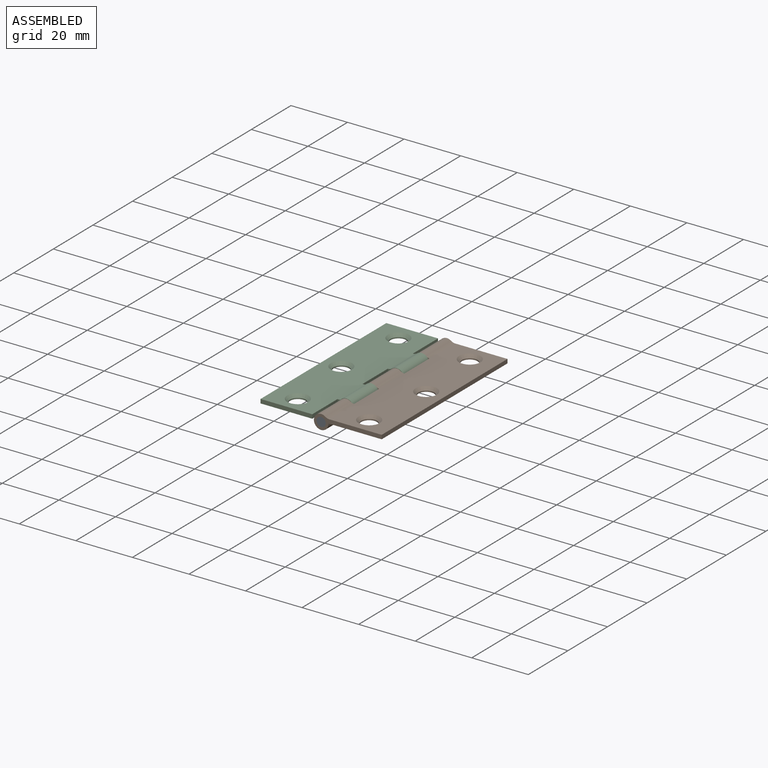
[diagram: assembled view]
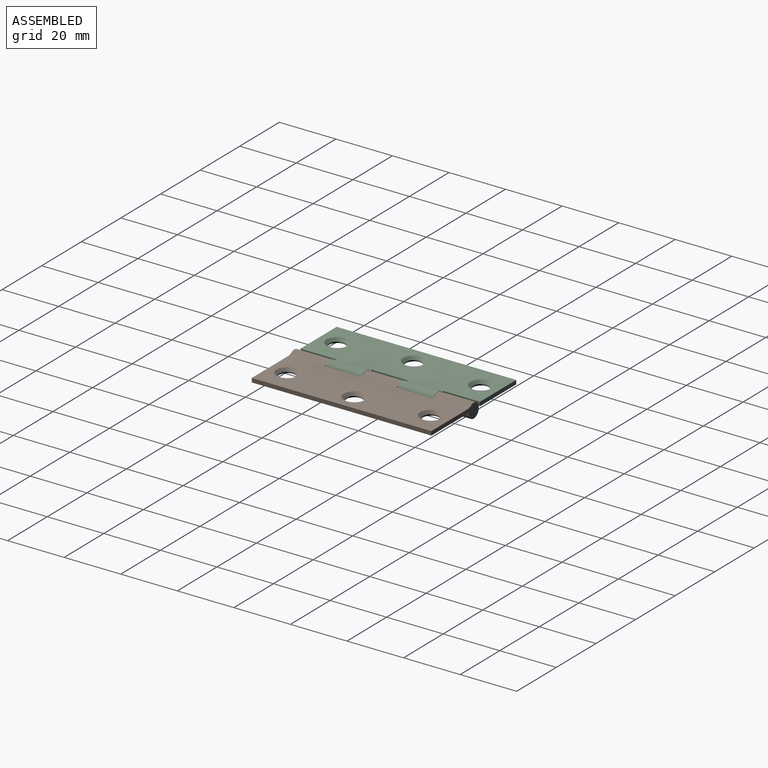
[diagram: assembled view, second angle]
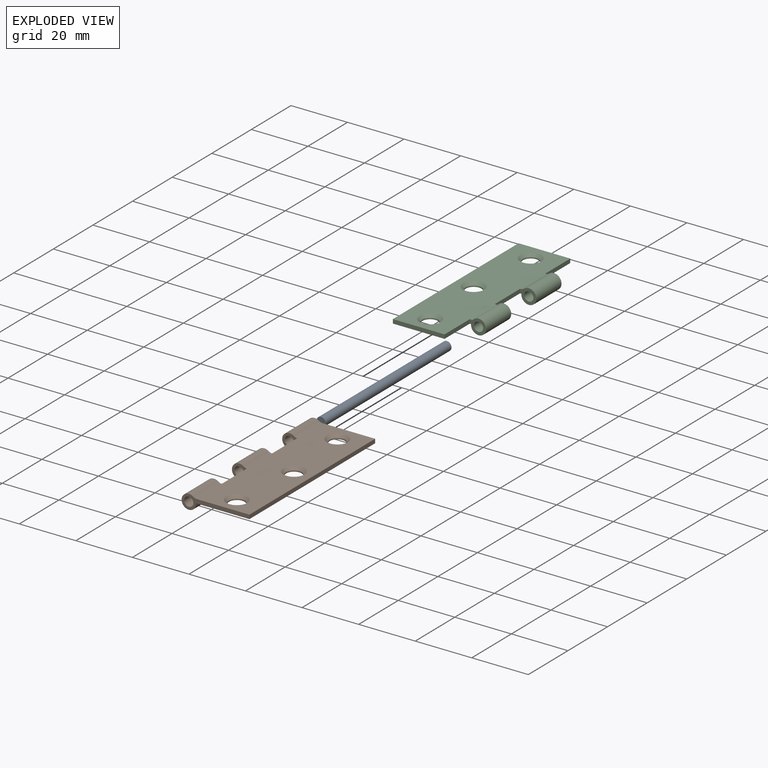
[diagram: exploded view]
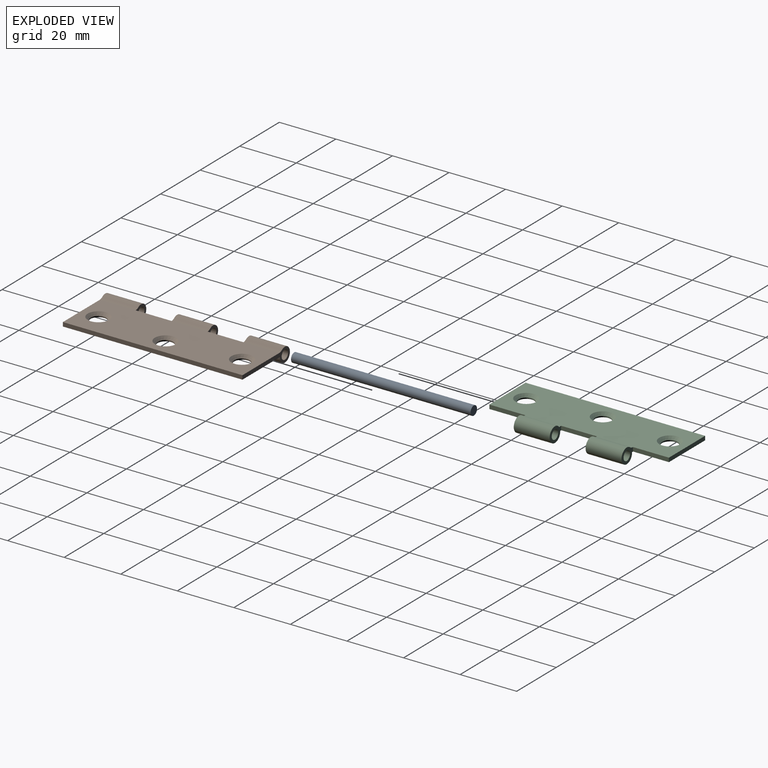
[diagram: exploded view, second angle]
ASSEMBLY  parts=3 mates=4
PART A: 3 faces, bbox 3.3x63.5x3.3 mm
  f0: cylinder r=1.63mm len=63.5mm, axis (0,-1,0), area 648.6mm2, adj f1,f2
  f1: plane 3.25x3.25mm, normal (0,1,0), area 8.3mm2, adj f0
  f2: plane 3.25x3.25mm, normal (0,-1,0), area 8.3mm2, adj f0
PART B: 24 faces, bbox 24x63.5x5.1 mm
  f0: plane 63.5x18.88mm, normal (0,0,-1), area 1121.7mm2, adj f2,f3,f5,f6,f7,f8,f9,f10
  f1: plane 63.5x18.48mm, normal (0,0,1), area 1038.4mm2, adj f5,f6,f7,f11,f12,f13,f23
  f2: cylinder r=2.55mm len=12.7mm, axis (0,-1,0), area 175.2mm2, adj f0,f7,f21,f23
  f3: cylinder r=2.55mm len=12.7mm, axis (0,-1,0), area 175.2mm2, adj f0,f17,f22,f23
  f4: cylinder r=1.63mm len=12.7mm, axis (0,-1,0), area 129.7mm2, adj f7,f21
  f5: plane 23.98x5.1mm, normal (0,-1,0), area 39.4mm2, adj f0,f1,f6,f14,f15,f23
  f6: plane 63.5x1.42mm, normal (1,0,0), area 90.3mm2, adj f0,f1,f5,f7
  f7: plane 23.98x5.1mm, normal (0,1,0), area 39.4mm2, adj f0,f1,f2,f4,f6,f23
  f8: cylinder r=2.77mm len=5.54mm, axis (0,0,1), area 7.1mm2, adj f0,f13
  f9: cylinder r=2.77mm len=5.54mm, axis (0,0,1), area 7.1mm2, adj f0,f11
  f10: cylinder r=2.77mm len=5.54mm, axis (0,0,1), area 7.1mm2, adj f0,f12
  f11: cone r=3.78mm half-angle=45deg, axis (0,0,1), area 29.6mm2, adj f1,f9
  f12: cone r=3.78mm half-angle=45deg, axis (0,0,1), area 29.6mm2, adj f1,f10
  f13: cone r=3.78mm half-angle=45deg, axis (0,0,1), area 29.6mm2, adj f1,f8
  f14: cylinder r=2.55mm len=12.7mm, axis (0,-1,0), area 175.2mm2, adj f0,f5,f18,f23
  f15: cylinder r=1.63mm len=12.7mm, axis (0,-1,0), area 129.7mm2, adj f5,f18
  f16: plane 12.7x1.43mm, normal (-1,0,0), area 18.2mm2, adj f0,f17,f18,f23
  f17: plane 5.29x5.1mm, normal (0,-1,0), area 12.8mm2, adj f0,f3,f16,f19,f23
  f18: plane 5.29x5.1mm, normal (0,1,0), area 12.8mm2, adj f0,f14,f15,f16,f23
  f19: cylinder r=1.63mm len=12.7mm, axis (0,-1,0), area 129.7mm2, adj f17,f22
  f20: plane 12.7x1.43mm, normal (-1,0,0), area 18.2mm2, adj f0,f21,f22,f23
  f21: plane 5.29x5.1mm, normal (0,-1,0), area 12.8mm2, adj f0,f2,f4,f20,f23
  f22: plane 5.29x5.1mm, normal (0,1,0), area 12.8mm2, adj f0,f3,f19,f20,f23
  f23: cylinder r=2.54mm len=63.5mm, axis (0,-1,0), area 65mm2, adj f1,f2,f3,f5,f7,f14,f16,f17
PART C: 23 faces, bbox 24.1x63.5x5.3 mm
  f0: plane 18.29x1.42mm, normal (0,-1,0), area 26mm2, adj f1,f2,f6,f19
  f1: plane 63.5x18.77mm, normal (0,0,-1), area 1101.4mm2, adj f0,f3,f4,f5,f6,f7,f8,f9
  f2: plane 63.5x19.31mm, normal (0,0,1), area 1039.4mm2, adj f0,f3,f5,f6,f10,f11,f12,f13
  f3: cylinder r=2.66mm len=12.7mm, axis (0,-1,0), area 192.8mm2, adj f1,f2,f15,f20
  f4: cylinder r=2.66mm len=12.7mm, axis (0,-1,0), area 183.6mm2, adj f1,f14,f18,f22
  f5: plane 18.29x1.42mm, normal (0,1,0), area 26mm2, adj f1,f2,f6,f17
  f6: plane 63.5x1.42mm, normal (-1,0,0), area 90.3mm2, adj f0,f1,f2,f5
  f7: cylinder r=2.77mm len=5.54mm, axis (0,0,1), area 7.1mm2, adj f1,f10
  f8: cylinder r=2.77mm len=5.54mm, axis (0,0,1), area 7.1mm2, adj f1,f11
  f9: cylinder r=2.77mm len=5.54mm, axis (0,0,1), area 7.1mm2, adj f1,f12
  f10: cone r=2.77mm half-angle=45deg, axis (0,0,1), area 29.6mm2, adj f2,f7
  f11: cone r=2.77mm half-angle=45deg, axis (0,0,1), area 29.6mm2, adj f2,f8
  f12: cone r=2.77mm half-angle=45deg, axis (0,0,1), area 29.6mm2, adj f2,f9
  f13: plane 12.7x1.42mm, normal (1,0,0), area 18.1mm2, adj f1,f2,f14,f15
  f14: plane 5.8x5.32mm, normal (0,-1,0), area 15mm2, adj f1,f2,f4,f13,f16,f22
  f15: plane 5.8x5.32mm, normal (0,1,0), area 14.9mm2, adj f1,f2,f3,f13,f21
  f16: cylinder r=1.63mm len=12.7mm, axis (0,-1,0), area 129.7mm2, adj f14,f18
  f17: plane 12.71x1.42mm, normal (1,0,0), area 18.1mm2, adj f1,f2,f5,f18
  f18: plane 5.8x5.32mm, normal (0,1,0), area 15mm2, adj f1,f2,f4,f16,f17,f22
  f19: plane 12.69x1.42mm, normal (1,0,0), area 18.1mm2, adj f0,f1,f2,f20
  f20: plane 5.8x5.32mm, normal (0,-1,0), area 14.9mm2, adj f1,f2,f3,f19,f21
  f21: cylinder r=1.63mm len=12.7mm, axis (0,-1,0), area 129.7mm2, adj f15,f20
  f22: cylinder r=2.54mm len=12.7mm, axis (0,-1,0), area 20.8mm2, adj f2,f4,f14,f18
PLACE A t=(-55.51,-3.84,-11.85)mm
PLACE B t=(-27.87,-3.85,-10.24)mm
PLACE C t=(-19.19,-3.84,-10.24)mm
MATE cylindrical A.f0 <-> C.f3  axis (0,-1,0) through (-23.76,-7.56,-11.85)mm
MATE cylindrical B.f2 <-> A.f0  axis (0,-1,0) through (-23.76,-39.32,-11.85)mm
MATE planar B.f2 <-> C.f3  axis (0,1,0) through (-23.76,-26.62,-11.85)mm
MATE planar A.f0 <-> C.f0  axis (0,-1,0) through (-23.76,-39.31,-11.85)mm
